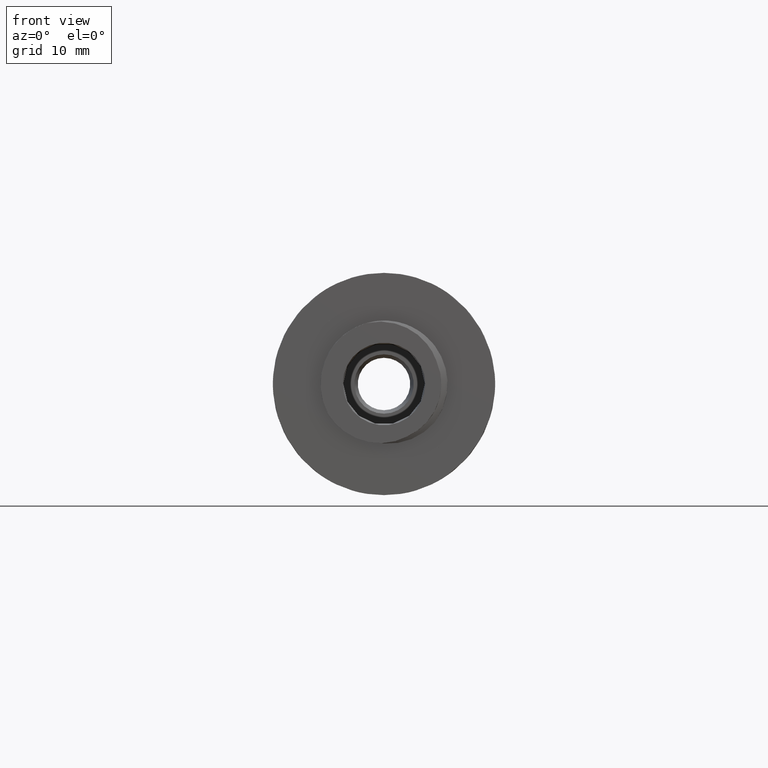
[diagram: clean part render]
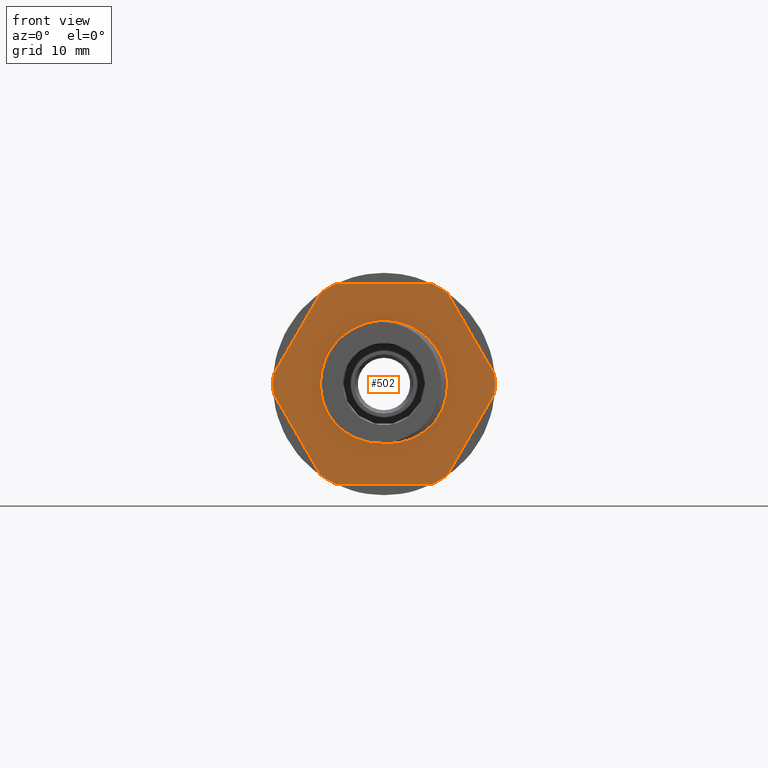
[diagram: same view with one face highlighted and labeled with its STEP entity id]
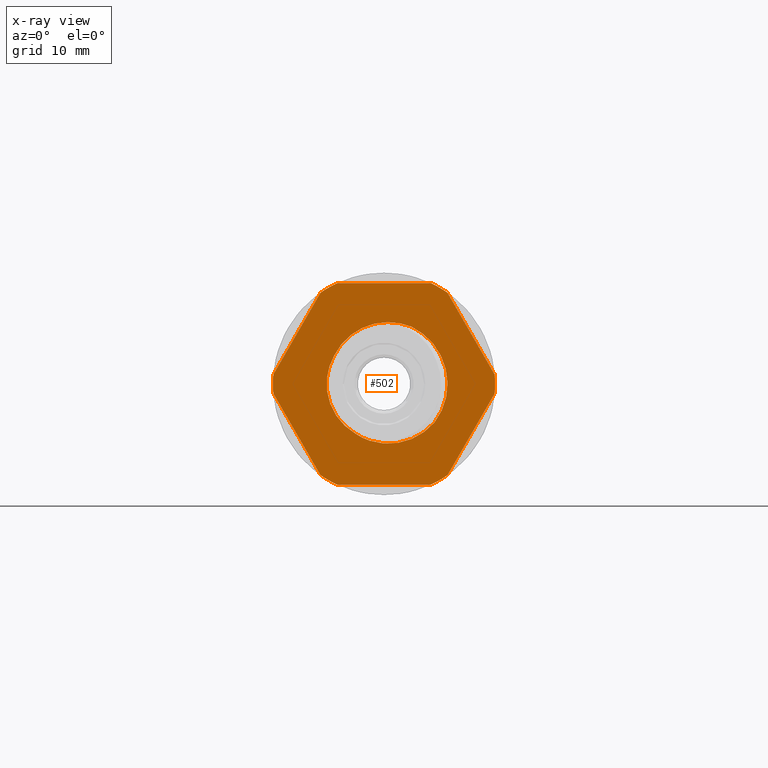
[diagram: x-ray of the same camera — body ghosted, the highlighted face saturated]
A machine part, front view. The second image highlights one B-rep face of the part: STEP entity #502.
The next image is the same camera in x-ray: the body ghosted, the highlighted face saturated — about 0% of this face is hidden behind the body in this view.
In plain terms, the highlighted planar face has unit normal (0, -1, 0).
Its self-contained STEP definition (entity closure, byte-faithful):
#502 = ADVANCED_FACE ( 'NONE', ( #4225, #4235 ), #4246, .T. ) ;
#2065 = EDGE_LOOP ( 'NONE', ( #19933, #19923, #19886, #19921 ) ) ;
#2100 = EDGE_LOOP ( 'NONE', ( #19893, #19943, #19882, #19884, #19920, #19888, #19929, #19899, #19908, #19894, #19897, #19881 ) ) ;
#4210 = CARTESIAN_POINT ( 'NONE',  ( 8.673617379884035500E-016, -14.06608847983449600, 0.0000000000000000000 ) ) ;
#4217 = DIRECTION ( 'NONE',  ( 0.0000000000000000000, -0.0000000000000000000, -1.000000000000000000 ) ) ;
#4225 = FACE_OUTER_BOUND ( 'NONE', #2100, .T. ) ;
#4230 = DIRECTION ( 'NONE',  ( 0.0000000000000000000, -1.000000000000000000, 0.0000000000000000000 ) ) ;
#4235 = FACE_BOUND ( 'NONE', #2065, .T. ) ;
#4246 = PLANE ( 'NONE',  #17505 ) ;
#10229 = AXIS2_PLACEMENT_3D ( 'NONE', #10997, #10991, #11010 ) ;
#10231 = AXIS2_PLACEMENT_3D ( 'NONE', #10978, #10979, #11004 ) ;
#10237 = CIRCLE ( 'NONE', #10260, 10.50000000000000000 ) ;
#10260 = AXIS2_PLACEMENT_3D ( 'NONE', #11005, #10983, #10994 ) ;
#10265 = CIRCLE ( 'NONE', #10231, 10.50000000000000000 ) ;
#10274 = CIRCLE ( 'NONE', #10229, 10.50000000000000000 ) ;
#10763 = B_SPLINE_CURVE_WITH_KNOTS ( 'NONE', 3,
 ( #15718, #15758, #15767, #15814, #15763, #15804, #15795, #15802, #15789, #15813, #15779, #15792, #15798, #15797, #15809, #15803, #15769, #15796 ),
 .UNSPECIFIED., .F., .F.,
 ( 4, 2, 2, 2, 2, 2, 2, 2, 4 ),
 ( 0.0000000000000000000, 0.001066787720370163700, 0.002133575440740327400, 0.003200363161110491200, 0.004267150881480654900, 0.005333938601850819100, 0.006400726322220982300, 0.007467514042591145600, 0.008534301762961309800 ),
 .UNSPECIFIED. ) ;
#10978 = CARTESIAN_POINT ( 'NONE',  ( 3.469446951953614200E-015, -14.06608847983449600, 0.0000000000000000000 ) ) ;
#10979 = DIRECTION ( 'NONE',  ( -0.0000000000000000000, -1.000000000000000000, -0.0000000000000000000 ) ) ;
#10983 = DIRECTION ( 'NONE',  ( -0.0000000000000000000, -1.000000000000000000, -0.0000000000000000000 ) ) ;
#10991 = DIRECTION ( 'NONE',  ( -0.0000000000000000000, -1.000000000000000000, -0.0000000000000000000 ) ) ;
#10994 = DIRECTION ( 'NONE',  ( 0.0000000000000000000, 0.0000000000000000000, 1.000000000000000000 ) ) ;
#10997 = CARTESIAN_POINT ( 'NONE',  ( 3.469446951953614200E-015, -14.06608847983449600, 0.0000000000000000000 ) ) ;
#11004 = DIRECTION ( 'NONE',  ( 6.217248937900878200E-015, 0.0000000000000000000, 1.000000000000000000 ) ) ;
#11005 = CARTESIAN_POINT ( 'NONE',  ( 3.469446951953614200E-015, -14.06608847983449600, 0.0000000000000000000 ) ) ;
#11010 = DIRECTION ( 'NONE',  ( 0.0000000000000000000, 0.0000000000000000000, 1.000000000000000000 ) ) ;
#11068 = CARTESIAN_POINT ( 'NONE',  ( -4.689457108126862100, -14.06608847983450000, -2.731380274179539700 ) ) ;
#11069 = CARTESIAN_POINT ( 'NONE',  ( -5.003142787664121000, -14.06608847983449800, -2.102381606032344600 ) ) ;
#11084 = CARTESIAN_POINT ( 'NONE',  ( -3.823688456034072500, -14.06608847983450200, -3.851336720197459300 ) ) ;
#11085 = CARTESIAN_POINT ( 'NONE',  ( -2.997659502135583000, -14.06608847983283700, -4.524275169128647400 ) ) ;
#11086 = CARTESIAN_POINT ( 'NONE',  ( -3.289484678676576100, -14.06608847983449800, -4.316558639692229500 ) ) ;
#11092 = CARTESIAN_POINT ( 'NONE',  ( -4.500833158353570300, -14.06608847983449600, -3.032600728192525800 ) ) ;
#11093 = CARTESIAN_POINT ( 'NONE',  ( -5.130176405896551600, -14.06608847983449600, -1.770827888042065600 ) ) ;
#11094 = CARTESIAN_POINT ( 'NONE',  ( -5.411568140800053300, -14.06608847983449500, -0.7411381283951034000 ) ) ;
#11095 = CARTESIAN_POINT ( 'NONE',  ( -2.688181526577526200, -14.06608847983450000, -4.701235661375267000 ) ) ;
#11097 = CARTESIAN_POINT ( 'NONE',  ( -5.461914483790708100, -14.06608847983448700, -0.01749774254835754400 ) ) ;
#11100 = CARTESIAN_POINT ( 'NONE',  ( -5.326646838170562500, -14.06608847983449100, 1.039706669657944000 ) ) ;
#11104 = CARTESIAN_POINT ( 'NONE',  ( -5.246307372275980500, -14.06608847983449800, 1.388647107955328000 ) ) ;
#11107 = CARTESIAN_POINT ( 'NONE',  ( -5.022146038860636700, -14.06608847983449800, 2.056728226865771200 ) ) ;
#11108 = CARTESIAN_POINT ( 'NONE',  ( -4.878196153580582900, -14.06608847983450300, 2.378703551081850200 ) ) ;
#11116 = CARTESIAN_POINT ( 'NONE',  ( -4.701235661375175600, -14.06608847983449800, 2.688181526577682100 ) ) ;
#11126 = CARTESIAN_POINT ( 'NONE',  ( -4.066050393780154000, -14.06608847983449800, -3.594634959381700400 ) ) ;
#11128 = CARTESIAN_POINT ( 'NONE',  ( 3.792318971485261900, -14.06608847983449800, -4.586043972375537500 ) ) ;
#11130 = CARTESIAN_POINT ( 'NONE',  ( 2.568711144318149800, -14.06608847983450900, -5.226456973700150500 ) ) ;
#11131 = CARTESIAN_POINT ( 'NONE',  ( 1.921833388753359900, -14.06608847983451200, -5.445424075155634600 ) ) ;
#11134 = CARTESIAN_POINT ( 'NONE',  ( 0.9025665093237047500, -14.06608847983449600, -5.628879220091947700 ) ) ;
#11135 = CARTESIAN_POINT ( 'NONE',  ( 0.5604771054472337300, -14.06608847983454800, -5.648722745187678900 ) ) ;
#11137 = CARTESIAN_POINT ( 'NONE',  ( -0.6356840557164564800, -14.06608847983450000, -5.549196213933725200 ) ) ;
#11138 = CARTESIAN_POINT ( 'NONE',  ( -1.141565351020316100, -14.06608847983450000, -5.437369555297881800 ) ) ;
#11140 = CARTESIAN_POINT ( 'NONE',  ( 4.321827361302375400, -14.06608847983426700, -4.152598794215651700 ) ) ;
#11150 = CARTESIAN_POINT ( 'NONE',  ( 1.587522208298472300, -14.06608847983449800, -5.526686947799603900 ) ) ;
#11153 = CARTESIAN_POINT ( 'NONE',  ( 0.04790296960731237800, -14.06608847983455100, -5.633435332421090200 ) ) ;
#11154 = CARTESIAN_POINT ( 'NONE',  ( -0.1228599635649783600, -14.06608847983449600, -5.620687229909000500 ) ) ;
#11155 = CARTESIAN_POINT ( 'NONE',  ( -0.4641798256332428400, -14.06608847983449800, -5.578616834357105400 ) ) ;
#11156 = CARTESIAN_POINT ( 'NONE',  ( 2.882320093191679300, -14.06608847983449600, -5.088599682293881300 ) ) ;
#11162 = CARTESIAN_POINT ( 'NONE',  ( 4.777251408074142200, -14.06608847983450000, -3.630133466424293700 ) ) ;
#11198 = CARTESIAN_POINT ( 'NONE',  ( -2.095867341851511200, -14.06608847983449500, -5.062042506519821600 ) ) ;
#11199 = CARTESIAN_POINT ( 'NONE',  ( -1.467195066567363400, -14.06608847983449800, -5.332134320488502300 ) ) ;
#11208 = CARTESIAN_POINT ( 'NONE',  ( -2.688181526577526200, -14.06608847983450000, -4.701235661375267000 ) ) ;
#11220 = CARTESIAN_POINT ( 'NONE',  ( -2.400759746615136700, -14.06608847983450500, -4.895819168617936000 ) ) ;
#13379 = VECTOR ( 'NONE', #16059, 1000.000000000000100 ) ;
#13391 = VECTOR ( 'NONE', #15999, 1000.000000000000000 ) ;
#13402 = VECTOR ( 'NONE', #16131, 1000.000000000000000 ) ;
#13417 = VECTOR ( 'NONE', #16068, 1000.000000000000100 ) ;
#13427 = CIRCLE ( 'NONE', #13452, 6.000000000000002700 ) ;
#13430 = CIRCLE ( 'NONE', #13462, 10.50000000000000000 ) ;
#13439 = AXIS2_PLACEMENT_3D ( 'NONE', #16351, #16321, #16346 ) ;
#13452 = AXIS2_PLACEMENT_3D ( 'NONE', #16347, #16353, #16356 ) ;
#13457 = CIRCLE ( 'NONE', #13475, 10.50000000000000000 ) ;
#13462 = AXIS2_PLACEMENT_3D ( 'NONE', #16265, #16297, #16280 ) ;
#13475 = AXIS2_PLACEMENT_3D ( 'NONE', #16334, #16338, #16315 ) ;
#13479 = VECTOR ( 'NONE', #16397, 1000.000000000000000 ) ;
#13480 = CIRCLE ( 'NONE', #13439, 10.50000000000000000 ) ;
#13485 = VECTOR ( 'NONE', #16445, 1000.000000000000100 ) ;
#15718 = CARTESIAN_POINT ( 'NONE',  ( -4.701235661375175600, -14.06608847983449800, 2.688181526577682100 ) ) ;
#15758 = CARTESIAN_POINT ( 'NONE',  ( -4.545325505783472900, -14.06608847983449800, 3.013417416691135400 ) ) ;
#15763 = CARTESIAN_POINT ( 'NONE',  ( -3.684641056502043500, -14.06608847983450200, 4.151360500925918000 ) ) ;
#15767 = CARTESIAN_POINT ( 'NONE',  ( -4.359495116579090300, -14.06608847983450000, 3.317516671549732600 ) ) ;
#15769 = CARTESIAN_POINT ( 'NONE',  ( 2.268569199740983600, -14.06608847983449800, 5.540258792126755000 ) ) ;
#15779 = CARTESIAN_POINT ( 'NONE',  ( -0.9145141753298518000, -14.06608847983449800, 5.701505986250457300 ) ) ;
#15789 = CARTESIAN_POINT ( 'NONE',  ( -1.926397951572768500, -14.06608847983450000, 5.365483806010414200 ) ) ;
#15792 = CARTESIAN_POINT ( 'NONE',  ( -0.2062005864072910500, -14.06608847983449600, 5.818000324222516000 ) ) ;
#15795 = CARTESIAN_POINT ( 'NONE',  ( -2.865865872798199400, -14.06608847983450000, 4.840399504226018800 ) ) ;
#15796 = CARTESIAN_POINT ( 'NONE',  ( 2.602919706329293700, -14.06608847983449800, 5.405997502998254800 ) ) ;
#15797 = CARTESIAN_POINT ( 'NONE',  ( 0.8640390672097567600, -14.06608847983448200, 5.826621250131706700 ) ) ;
#15798 = CARTESIAN_POINT ( 'NONE',  ( 0.1528124385398028100, -14.06608847983448200, 5.841890452538060600 ) ) ;
#15802 = CARTESIAN_POINT ( 'NONE',  ( -2.253539718779748600, -14.06608847983449600, 5.208930181035051500 ) ) ;
#15803 = CARTESIAN_POINT ( 'NONE',  ( 1.925088951048500300, -14.06608847983450300, 5.643311462244494900 ) ) ;
#15804 = CARTESIAN_POINT ( 'NONE',  ( -3.152111637517874600, -14.06608847983450200, 4.628920405937026100 ) ) ;
#15809 = CARTESIAN_POINT ( 'NONE',  ( 1.219925070794669200, -14.06608847983450300, 5.787191338257749800 ) ) ;
#15813 = CARTESIAN_POINT ( 'NONE',  ( -1.258451804216478300, -14.06608847983450200, 5.610677982189509200 ) ) ;
#15814 = CARTESIAN_POINT ( 'NONE',  ( -3.930483217885340200, -14.06608847983449500, 3.885200467156962200 ) ) ;
#15996 = CARTESIAN_POINT ( 'NONE',  ( 8.673617379884035500E-016, -14.06608847983449600, 9.500000000000016000 ) ) ;
#15999 = DIRECTION ( 'NONE',  ( -1.000000000000000000, -0.0000000000000000000, -0.0000000000000000000 ) ) ;
#16016 = LINE ( 'NONE', #15996, #13391 ) ;
#16025 = CARTESIAN_POINT ( 'NONE',  ( -5.991173358452394700, -14.06608847983449600, 8.622983346207403700 ) ) ;
#16037 = LINE ( 'NONE', #16038, #13379 ) ;
#16038 = CARTESIAN_POINT ( 'NONE',  ( 5.991173358452376100, -14.06608847983449600, -8.622983346207421500 ) ) ;
#16059 = DIRECTION ( 'NONE',  ( 0.5000000000000002200, 0.0000000000000000000, 0.8660254037844384900 ) ) ;
#16061 = LINE ( 'NONE', #16025, #13417 ) ;
#16068 = DIRECTION ( 'NONE',  ( -0.5000000000000003300, 0.0000000000000000000, -0.8660254037844383700 ) ) ;
#16128 = LINE ( 'NONE', #16159, #13402 ) ;
#16131 = DIRECTION ( 'NONE',  ( 1.000000000000000000, 0.0000000000000000000, 0.0000000000000000000 ) ) ;
#16159 = CARTESIAN_POINT ( 'NONE',  ( 8.673617379884035500E-016, -14.06608847983449600, -9.500000000000016000 ) ) ;
#16265 = CARTESIAN_POINT ( 'NONE',  ( 3.469446951953614200E-015, -14.06608847983449600, 0.0000000000000000000 ) ) ;
#16280 = DIRECTION ( 'NONE',  ( 0.0000000000000000000, 0.0000000000000000000, 1.000000000000000000 ) ) ;
#16297 = DIRECTION ( 'NONE',  ( -0.0000000000000000000, -1.000000000000000000, -0.0000000000000000000 ) ) ;
#16315 = DIRECTION ( 'NONE',  ( 8.881784197001252300E-016, 0.0000000000000000000, 1.000000000000000000 ) ) ;
#16321 = DIRECTION ( 'NONE',  ( -0.0000000000000000000, -1.000000000000000000, -0.0000000000000000000 ) ) ;
#16334 = CARTESIAN_POINT ( 'NONE',  ( 3.469446951953614200E-015, -14.06608847983449600, 0.0000000000000000000 ) ) ;
#16338 = DIRECTION ( 'NONE',  ( -0.0000000000000000000, -1.000000000000000000, -0.0000000000000000000 ) ) ;
#16346 = DIRECTION ( 'NONE',  ( 0.0000000000000000000, 0.0000000000000000000, 1.000000000000000000 ) ) ;
#16347 = CARTESIAN_POINT ( 'NONE',  ( 0.0000000000000000000, -14.06608847983450000, 0.0000000000000000000 ) ) ;
#16351 = CARTESIAN_POINT ( 'NONE',  ( 3.469446951953614200E-015, -14.06608847983449600, 0.0000000000000000000 ) ) ;
#16353 = DIRECTION ( 'NONE',  ( -0.0000000000000000000, -1.000000000000000000, -0.0000000000000000000 ) ) ;
#16356 = DIRECTION ( 'NONE',  ( 0.0000000000000000000, 0.0000000000000000000, -1.000000000000000000 ) ) ;
#16369 = CARTESIAN_POINT ( 'NONE',  ( 10.46330931345196000, -14.06608847983449600, 0.8770166537925940800 ) ) ;
#16374 = CARTESIAN_POINT ( 'NONE',  ( -10.46330931345195300, -14.06608847983449600, -0.8770166537925873100 ) ) ;
#16392 = LINE ( 'NONE', #16369, #13485 ) ;
#16396 = LINE ( 'NONE', #16374, #13479 ) ;
#16397 = DIRECTION ( 'NONE',  ( 0.5000000000000008900, 0.0000000000000000000, -0.8660254037844381500 ) ) ;
#16445 = DIRECTION ( 'NONE',  ( -0.4999999999999997800, 0.0000000000000000000, 0.8660254037844388200 ) ) ;
#16481 = CARTESIAN_POINT ( 'NONE',  ( -10.46330931345195100, -14.06608847983449600, 0.8770166537926155100 ) ) ;
#16764 = CARTESIAN_POINT ( 'NONE',  ( 5.991173358452377900, -14.06608847983449600, -8.622983346207421500 ) ) ;
#16782 = CARTESIAN_POINT ( 'NONE',  ( -4.701235661375175600, -14.06608847983449800, 2.688181526577682100 ) ) ;
#16784 = CARTESIAN_POINT ( 'NONE',  ( 5.991173358452396500, -14.06608847983449600, 8.622983346207407300 ) ) ;
#16818 = CARTESIAN_POINT ( 'NONE',  ( -10.46330931345195500, -14.06608847983449600, -0.8770166537925866400 ) ) ;
#16819 = CARTESIAN_POINT ( 'NONE',  ( 4.472135954999550300, -14.06608847983449600, -9.500000000000016000 ) ) ;
#16826 = CARTESIAN_POINT ( 'NONE',  ( 4.472135954999550300, -14.06608847983449600, 9.500000000000016000 ) ) ;
#16827 = CARTESIAN_POINT ( 'NONE',  ( -5.991173358452359200, -14.06608847983449600, -8.622983346207428600 ) ) ;
#16830 = CARTESIAN_POINT ( 'NONE',  ( 4.777251408074142200, -14.06608847983450000, -3.630133466424293700 ) ) ;
#16831 = CARTESIAN_POINT ( 'NONE',  ( -2.688181526577526200, -14.06608847983450000, -4.701235661375267000 ) ) ;
#16833 = CARTESIAN_POINT ( 'NONE',  ( 10.46330931345196200, -14.06608847983449600, -0.8770166537925807600 ) ) ;
#16841 = CARTESIAN_POINT ( 'NONE',  ( 2.602919706329293700, -14.06608847983449800, 5.405997502998254800 ) ) ;
#16865 = CARTESIAN_POINT ( 'NONE',  ( -4.472135954999541400, -14.06608847983449600, -9.500000000000016000 ) ) ;
#16871 = CARTESIAN_POINT ( 'NONE',  ( -5.991173358452396500, -14.06608847983449600, 8.622983346207403700 ) ) ;
#16876 = CARTESIAN_POINT ( 'NONE',  ( 10.46330931345196000, -14.06608847983449600, 0.8770166537925968600 ) ) ;
#16890 = CARTESIAN_POINT ( 'NONE',  ( -4.472135954999544100, -14.06608847983449600, 9.500000000000016000 ) ) ;
#17505 = AXIS2_PLACEMENT_3D ( 'NONE', #4210, #4230, #4217 ) ;
#17594 = EDGE_CURVE ( 'NONE', #20437, #20431, #10274, .T. ) ;
#17595 = EDGE_CURVE ( 'NONE', #20456, #20485, #10265, .T. ) ;
#17596 = EDGE_CURVE ( 'NONE', #20467, #20398, #10237, .T. ) ;
#17619 = EDGE_CURVE ( 'NONE', #20417, #20424, #20834, .T. ) ;
#17629 = EDGE_CURVE ( 'NONE', #20448, #20417, #20827, .T. ) ;
#18878 = EDGE_CURVE ( 'NONE', #20424, #20435, #10763, .T. ) ;
#18928 = EDGE_CURVE ( 'NONE', #20431, #20484, #16016, .T. ) ;
#18941 = EDGE_CURVE ( 'NONE', #20398, #20456, #16037, .T. ) ;
#18942 = EDGE_CURVE ( 'NONE', #20482, #19140, #16061, .T. ) ;
#18958 = EDGE_CURVE ( 'NONE', #20505, #20467, #16128, .T. ) ;
#19000 = EDGE_CURVE ( 'NONE', #20414, #20505, #13430, .T. ) ;
#19003 = EDGE_CURVE ( 'NONE', #19140, #20469, #13480, .T. ) ;
#19007 = EDGE_CURVE ( 'NONE', #20484, #20482, #13457, .T. ) ;
#19009 = EDGE_CURVE ( 'NONE', #20448, #20435, #13427, .T. ) ;
#19025 = EDGE_CURVE ( 'NONE', #20469, #20414, #16396, .T. ) ;
#19027 = EDGE_CURVE ( 'NONE', #20485, #20437, #16392, .T. ) ;
#19140 = VERTEX_POINT ( 'NONE', #16481 ) ;
#19881 = ORIENTED_EDGE ( 'NONE', *, *, #19007, .T. ) ;
#19882 = ORIENTED_EDGE ( 'NONE', *, *, #19025, .T. ) ;
#19884 = ORIENTED_EDGE ( 'NONE', *, *, #19000, .T. ) ;
#19886 = ORIENTED_EDGE ( 'NONE', *, *, #17619, .T. ) ;
#19888 = ORIENTED_EDGE ( 'NONE', *, *, #17596, .T. ) ;
#19893 = ORIENTED_EDGE ( 'NONE', *, *, #18942, .T. ) ;
#19894 = ORIENTED_EDGE ( 'NONE', *, *, #17594, .T. ) ;
#19897 = ORIENTED_EDGE ( 'NONE', *, *, #18928, .T. ) ;
#19899 = ORIENTED_EDGE ( 'NONE', *, *, #17595, .T. ) ;
#19908 = ORIENTED_EDGE ( 'NONE', *, *, #19027, .T. ) ;
#19920 = ORIENTED_EDGE ( 'NONE', *, *, #18958, .T. ) ;
#19921 = ORIENTED_EDGE ( 'NONE', *, *, #18878, .T. ) ;
#19923 = ORIENTED_EDGE ( 'NONE', *, *, #17629, .T. ) ;
#19929 = ORIENTED_EDGE ( 'NONE', *, *, #18941, .T. ) ;
#19933 = ORIENTED_EDGE ( 'NONE', *, *, #19009, .F. ) ;
#19943 = ORIENTED_EDGE ( 'NONE', *, *, #19003, .T. ) ;
#20398 = VERTEX_POINT ( 'NONE', #16764 ) ;
#20414 = VERTEX_POINT ( 'NONE', #16827 ) ;
#20417 = VERTEX_POINT ( 'NONE', #16831 ) ;
#20424 = VERTEX_POINT ( 'NONE', #16782 ) ;
#20431 = VERTEX_POINT ( 'NONE', #16826 ) ;
#20435 = VERTEX_POINT ( 'NONE', #16841 ) ;
#20437 = VERTEX_POINT ( 'NONE', #16784 ) ;
#20448 = VERTEX_POINT ( 'NONE', #16830 ) ;
#20456 = VERTEX_POINT ( 'NONE', #16833 ) ;
#20467 = VERTEX_POINT ( 'NONE', #16819 ) ;
#20469 = VERTEX_POINT ( 'NONE', #16818 ) ;
#20482 = VERTEX_POINT ( 'NONE', #16871 ) ;
#20484 = VERTEX_POINT ( 'NONE', #16890 ) ;
#20485 = VERTEX_POINT ( 'NONE', #16876 ) ;
#20505 = VERTEX_POINT ( 'NONE', #16865 ) ;
#20827 = B_SPLINE_CURVE_WITH_KNOTS ( 'NONE', 3,
 ( #11162, #11140, #11128, #11156, #11130, #11131, #11150, #11134, #11135, #11153, #11154, #11155, #11137, #11138, #11199, #11198, #11220, #11208 ),
 .UNSPECIFIED., .F., .F.,
 ( 4, 2, 2, 2, 2, 2, 2, 2, 4 ),
 ( 6.130055642637541500E-015, 0.002049343168871157900, 0.003074014753303672000, 0.004098686337736185200, 0.005123357922168699300, 0.005635693714384957200, 0.006148029506601214300, 0.007172701091033730100, 0.008197372675466246800 ),
 .UNSPECIFIED. ) ;
#20834 = B_SPLINE_CURVE_WITH_KNOTS ( 'NONE', 3,
 ( #11095, #11085, #11086, #11084, #11126, #11092, #11068, #11069, #11093, #11094, #11097, #11100, #11104, #11107, #11108, #11116 ),
 .UNSPECIFIED., .F., .F.,
 ( 4, 2, 2, 2, 2, 2, 2, 4 ),
 ( 7.429269806034200100E-014, 0.001066917804431472900, 0.002133835608788653800, 0.003200753413145834600, 0.004267671217503016300, 0.006401506826217378800, 0.007468424630574560000, 0.008535342434931741200 ),
 .UNSPECIFIED. ) ;